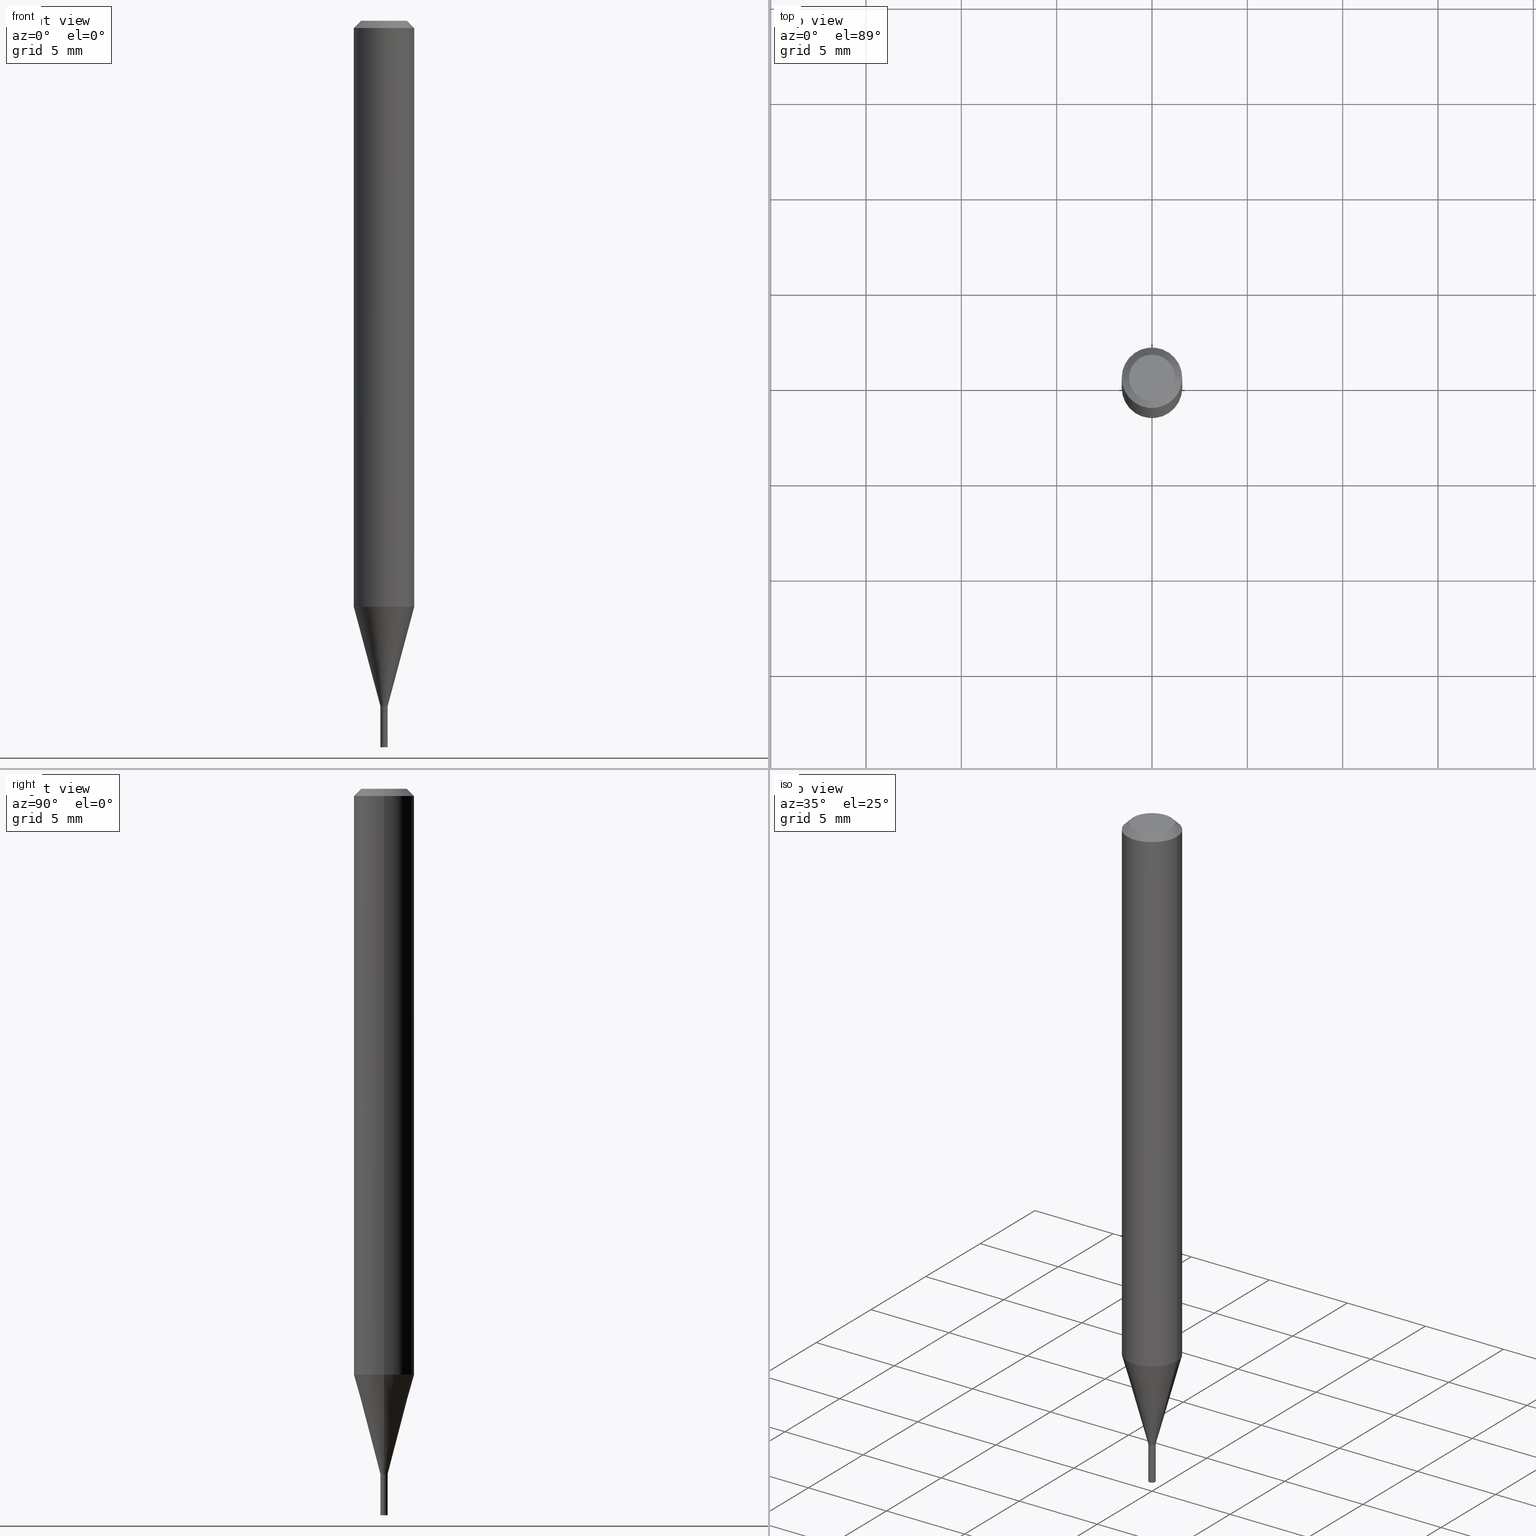
[diagram: canonical four-view strip — front | top / right | iso, engineering-drawing reading convention]
A machine part, canonical four-view strip (front | top / right | iso — engineering-drawing reading convention). The complete STEP part file that produces these views, byte-faithful:
ISO-10303-21;
HEADER;
FILE_DESCRIPTION (( 'STEP AP203' ),
    '1' );
FILE_NAME ('04183.STEP',
    '2024-03-14T17:13:35',
    ( '' ),
    ( '' ),
    'SwSTEP 2.0',
    'SolidWorks 2023',
    '' );
FILE_SCHEMA (( 'CONFIG_CONTROL_DESIGN' ));
ENDSEC;

DATA;
#1 = APPROVAL_STATUS ( 'not_yet_approved' ) ;
#2 = CIRCLE ( 'NONE', #393, 0.006999999999999999278 ) ;
#3 = DIRECTION ( 'NONE',  ( 0.7071067811865648922, -7.319954787623314421E-15, -0.7071067811865301422 ) ) ;
#4 = ADVANCED_FACE ( 'NONE', ( #452 ), #25, .T. ) ;
#5 = COORDINATED_UNIVERSAL_TIME_OFFSET ( 5, 0, .BEHIND. ) ;
#6 = DIRECTION ( 'NONE',  ( -2.445468806185136597E-29, 3.491481338843145583E-15, 1.000000000000000000 ) ) ;
#7 = VERTEX_POINT ( 'NONE', #384 ) ;
#8 = APPROVAL_ROLE ( '' ) ;
#9 = CARTESIAN_POINT ( 'NONE',  ( -0.007499999999999922527, -4.920324462000056082E-15, -1.424500000000000322 ) ) ;
#10 = ORIENTED_EDGE ( 'NONE', *, *, #118, .F. ) ;
#11 = CARTESIAN_POINT ( 'NONE',  ( 2.958374599936542913E-29, -4.223774878199784221E-15, -1.209737205583711894 ) ) ;
#12 = AXIS2_PLACEMENT_3D ( 'NONE', #63, #201, #18 ) ;
#13 = ORIENTED_EDGE ( 'NONE', *, *, #444, .F. ) ;
#14 = LINE ( 'NONE', #442, #451 ) ;
#15 = ORIENTED_EDGE ( 'NONE', *, *, #327, .T. ) ;
#16 = DIRECTION ( 'NONE',  ( 1.000000000000000000, -6.982962677686267499E-15, 4.852736867747366768E-29 ) ) ;
#17 = EDGE_CURVE ( 'NONE', #257, #260, #401, .T. ) ;
#18 = DIRECTION ( 'NONE',  ( 1.000000000000000000, -6.982962677686270655E-15, 0.000000000000000000 ) ) ;
#19 = AXIS2_PLACEMENT_3D ( 'NONE', #11, #284, #465 ) ;
#20 = ORIENTED_EDGE ( 'NONE', *, *, #89, .F. ) ;
#21 = DIRECTION ( 'NONE',  ( 1.000000000000000000, -6.982962677686268288E-15, 0.000000000000000000 ) ) ;
#22 = DIRECTION ( 'NONE',  ( -2.445468806185136597E-29, 3.491481338843145583E-15, 1.000000000000000000 ) ) ;
#23 =( NAMED_UNIT ( * ) SI_UNIT ( $, .STERADIAN. ) SOLID_ANGLE_UNIT ( ) );
#24 = VERTEX_POINT ( 'NONE', #462 ) ;
#25 = CONICAL_SURFACE ( 'NONE', #335, 0.006999999999999999278, 0.7853981633974718157 ) ;
#26 = ORIENTED_EDGE ( 'NONE', *, *, #389, .T. ) ;
#27 = AXIS2_PLACEMENT_3D ( 'NONE', #400, #56, #406 ) ;
#28 = LOCAL_TIME ( 13, 13, 35.00000000000000000, #5 ) ;
#29 = CALENDAR_DATE ( 2024, 14, 3 ) ;
#30 = CARTESIAN_POINT ( 'NONE',  ( -0.007499999999999920793, 5.329070518200695114E-17, -3.689201317691140293E-31 ) ) ;
#31 = ORIENTED_EDGE ( 'NONE', *, *, #307, .F. ) ;
#32 = EDGE_CURVE ( 'NONE', #110, #154, #38, .T. ) ;
#33 = DIRECTION ( 'NONE',  ( -2.445468806185136597E-29, 3.491481338843145583E-15, 1.000000000000000000 ) ) ;
#34 = FACE_OUTER_BOUND ( 'NONE', #75, .T. ) ;
#35 = AXIS2_PLACEMENT_3D ( 'NONE', #455, #146, #423 ) ;
#36 = AXIS2_PLACEMENT_3D ( 'NONE', #440, #299, #448 ) ;
#37 = APPROVAL_DATE_TIME ( #411, #276 ) ;
#38 = LINE ( 'NONE', #30, #417 ) ;
#39 = DATE_AND_TIME ( #350, #28 ) ;
#40 = CC_DESIGN_DATE_AND_TIME_ASSIGNMENT ( #380, #141, ( #255 ) ) ;
#41 = FACE_OUTER_BOUND ( 'NONE', #177, .T. ) ;
#42 = CARTESIAN_POINT ( 'NONE',  ( -0.06250000000000000000, -1.693984339291153034E-15, -0.01499999999999999944 ) ) ;
#43 = ORIENTED_EDGE ( 'NONE', *, *, #323, .F. ) ;
#44 = AXIS2_PLACEMENT_3D ( 'NONE', #416, #279, #104 ) ;
#45 = CONICAL_SURFACE ( 'NONE', #258, 0.007499999999999919925, 0.2617993877991498519 ) ;
#46 = CARTESIAN_POINT ( 'NONE',  ( -0.06250000000000001388, -3.779685668349720027E-15, -1.209737205583711894 ) ) ;
#47 = ADVANCED_FACE ( 'NONE', ( #176 ), #97, .T. ) ;
#48 = ORIENTED_EDGE ( 'NONE', *, *, #270, .T. ) ;
#49 = CYLINDRICAL_SURFACE ( 'NONE', #407, 0.007499999999999920793 ) ;
#50 = ORIENTED_EDGE ( 'NONE', *, *, #139, .T. ) ;
#51 = FACE_OUTER_BOUND ( 'NONE', #315, .T. ) ;
#52 = ORIENTED_EDGE ( 'NONE', *, *, #428, .T. ) ;
#53 = CARTESIAN_POINT ( 'NONE',  ( 3.576687321579069994E-29, -5.368277968210015545E-15, -1.500000000000000222 ) ) ;
#54 = VECTOR ( 'NONE', #64, 39.37007874015748143 ) ;
#55 = ORIENTED_EDGE ( 'NONE', *, *, #368, .T. ) ;
#56 = DIRECTION ( 'NONE',  ( -2.445468806185136597E-29, 3.491481338843145583E-15, 1.000000000000000000 ) ) ;
#57 = ADVANCED_FACE ( 'NONE', ( #241 ), #382, .F. ) ;
#58 = DIRECTION ( 'NONE',  ( 2.438088387897960049E-29, -3.491481338843145188E-15, -1.000000000000000000 ) ) ;
#59 = ORIENTED_EDGE ( 'NONE', *, *, #345, .F. ) ;
#60 = DIRECTION ( 'NONE',  ( 1.000000000000000000, -6.982962677686213068E-15, 0.000000000000000000 ) ) ;
#61 = VECTOR ( 'NONE', #147, 39.37007874015748143 ) ;
#62 = CIRCLE ( 'NONE', #363, 0.06250000000000000000 ) ;
#63 = CARTESIAN_POINT ( 'NONE',  ( 2.958374599936542913E-29, -4.223774878199784221E-15, -1.209737205583711894 ) ) ;
#64 = DIRECTION ( 'NONE',  ( -2.445468806185136877E-29, 3.491481338843145188E-15, 1.000000000000000000 ) ) ;
#65 = DIRECTION ( 'NONE',  ( -2.445468806185136877E-29, 3.491481338843145188E-15, 1.000000000000000000 ) ) ;
#66 = LOCAL_TIME ( 13, 13, 35.00000000000000000, #240 ) ;
#67 = DIRECTION ( 'NONE',  ( 1.000000000000000000, -6.982962677686265922E-15, 4.876176775795935793E-29 ) ) ;
#68 = ADVANCED_FACE ( 'NONE', ( #34 ), #347, .T. ) ;
#69 = CARTESIAN_POINT ( 'NONE',  ( -0.04749999999999999362, 3.578768372314198180E-16, -7.359664656873739018E-16 ) ) ;
#70 = ORIENTED_EDGE ( 'NONE', *, *, #307, .T. ) ;
#71 = EDGE_CURVE ( 'NONE', #441, #225, #156, .T. ) ;
#72 = AXIS2_PLACEMENT_3D ( 'NONE', #217, #123, #398 ) ;
#73 = VECTOR ( 'NONE', #403, 39.37007874015748854 ) ;
#74 = ADVANCED_FACE ( 'NONE', ( #41 ), #436, .T. ) ;
#75 = EDGE_LOOP ( 'NONE', ( #460, #391, #324, #373 ) ) ;
#76 = PERSON_AND_ORGANIZATION_ROLE ( 'design_supplier' ) ;
#77 = CARTESIAN_POINT ( 'NONE',  ( -0.006999999999999999278, -4.925622916348276907E-15, -1.425000000000000266 ) ) ;
#78 = ORIENTED_EDGE ( 'NONE', *, *, #208, .T. ) ;
#79 = DIRECTION ( 'NONE',  ( -2.445468806185136597E-29, 3.491481338843145583E-15, 1.000000000000000000 ) ) ;
#80 = CLOSED_SHELL ( 'NONE', ( #316, #405, #74, #339 ) ) ;
#81 = COORDINATED_UNIVERSAL_TIME_OFFSET ( 5, 0, .BEHIND. ) ;
#82 = AXIS2_PLACEMENT_3D ( 'NONE', #109, #385, #180 ) ;
#83 = CARTESIAN_POINT ( 'NONE',  ( 0.006999999999999999278, -5.024241646595287642E-15, -1.425000000000000266 ) ) ;
#84 = ORIENTED_EDGE ( 'NONE', *, *, #345, .T. ) ;
#85 = FACE_OUTER_BOUND ( 'NONE', #375, .T. ) ;
#86 = ORIENTED_EDGE ( 'NONE', *, *, #376, .F. ) ;
#87 = CARTESIAN_POINT ( 'NONE',  ( 0.007499999999999919925, -4.992818314545696633E-15, -1.415000000000000036 ) ) ;
#88 = ORIENTED_EDGE ( 'NONE', *, *, #32, .T. ) ;
#89 = EDGE_CURVE ( 'NONE', #7, #220, #371, .T. ) ;
#90 = CARTESIAN_POINT ( 'NONE',  ( -0.007499999999999999722, -5.053000752876092720E-15, -1.500000000000000222 ) ) ;
#91 =( GEOMETRIC_REPRESENTATION_CONTEXT ( 3 ) GLOBAL_UNCERTAINTY_ASSIGNED_CONTEXT ( ( #344 ) ) GLOBAL_UNIT_ASSIGNED_CONTEXT ( ( #209, #275, #23 ) ) REPRESENTATION_CONTEXT ( 'NONE', 'WORKASPACE' ) );
#92 = PLANE ( 'NONE',  #321 ) ;
#93 = CARTESIAN_POINT ( 'NONE',  ( 3.460338360751968441E-29, -4.940446094463050737E-15, -1.415000000000000036 ) ) ;
#94 = ADVANCED_FACE ( 'NONE', ( #51 ), #358, .T. ) ;
#95 = VERTEX_POINT ( 'NONE', #252 ) ;
#96 = DIRECTION ( 'NONE',  ( 1.000000000000000000, -6.982962677686213068E-15, 0.000000000000000000 ) ) ;
#97 = CONICAL_SURFACE ( 'NONE', #44, 0.06250000000000000000, 0.7853981633974729260 ) ;
#98 = CIRCLE ( 'NONE', #288, 0.007499999999999919925 ) ;
#99 = EDGE_LOOP ( 'NONE', ( #268, #160, #212, #192 ) ) ;
#100 = CARTESIAN_POINT ( 'NONE',  ( -0.06250000000000000000, 3.840629472727444916E-16, -0.01499999999999999944 ) ) ;
#101 = DIRECTION ( 'NONE',  ( -2.445468806185136597E-29, 3.491481338843145583E-15, 1.000000000000000000 ) ) ;
#102 = ADVANCED_FACE ( 'NONE', ( #114 ), #256, .T. ) ;
#103 =( LENGTH_UNIT ( ) NAMED_UNIT ( * ) SI_UNIT ( $, .METRE. ) );
#104 = DIRECTION ( 'NONE',  ( -1.000000000000000000, 6.982962677686266711E-15, 0.000000000000000000 ) ) ;
#105 = AXIS2_PLACEMENT_3D ( 'NONE', #259, #151, #119 ) ;
#106 = CIRCLE ( 'NONE', #179, 0.007499999999999919925 ) ;
#107 = CALENDAR_DATE ( 2024, 14, 3 ) ;
#108 = ORIENTED_EDGE ( 'NONE', *, *, #420, .T. ) ;
#109 = CARTESIAN_POINT ( 'NONE',  ( 0.000000000000000000, 0.000000000000000000, 0.000000000000000000 ) ) ;
#110 = VERTEX_POINT ( 'NONE', #9 ) ;
#111 = APPROVAL_DATE_TIME ( #251, #244 ) ;
#112 = ORIENTED_EDGE ( 'NONE', *, *, #327, .F. ) ;
#113 = VECTOR ( 'NONE', #461, 39.37007874015748143 ) ;
#114 = FACE_OUTER_BOUND ( 'NONE', #378, .T. ) ;
#115 = CARTESIAN_POINT ( 'NONE',  ( 1.799783034236790585E-44, -2.569613180961801607E-30, -7.359664656873714366E-16 ) ) ;
#116 = ORIENTED_EDGE ( 'NONE', *, *, #323, .T. ) ;
#117 = DATE_TIME_ROLE ( 'classification_date' ) ;
#118 = EDGE_CURVE ( 'NONE', #342, #110, #250, .T. ) ;
#119 = DIRECTION ( 'NONE',  ( 1.000000000000000000, -6.982962677686267499E-15, 4.876176775795936353E-29 ) ) ;
#120 = ADVANCED_BREP_SHAPE_REPRESENTATION ( '04183', ( #273, #437, #82 ), #91 ) ;
#121 = ORIENTED_EDGE ( 'NONE', *, *, #428, .F. ) ;
#122 = AXIS2_PLACEMENT_3D ( 'NONE', #161, #445, #322 ) ;
#123 = DIRECTION ( 'NONE',  ( -2.445468806185136597E-29, 3.491481338843145583E-15, 1.000000000000000000 ) ) ;
#124 = ORIENTED_EDGE ( 'NONE', *, *, #71, .T. ) ;
#125 = CARTESIAN_POINT ( 'NONE',  ( 3.483570314410727746E-29, -4.973615167182062460E-15, -1.424500000000000322 ) ) ;
#126 = ADVANCED_FACE ( 'NONE', ( #85 ), #49, .T. ) ;
#127 = DIRECTION ( 'NONE',  ( 1.000000000000000000, -6.982962677686213068E-15, 0.000000000000000000 ) ) ;
#128 = ORIENTED_EDGE ( 'NONE', *, *, #265, .T. ) ;
#129 = FACE_OUTER_BOUND ( 'NONE', #343, .T. ) ;
#130 = PRODUCT_DEFINITION_FORMATION_WITH_SPECIFIED_SOURCE ( 'ANY', '', #233, .NOT_KNOWN. ) ;
#131 = APPROVAL ( #1, 'UNSPECIFIED' ) ;
#132 = CARTESIAN_POINT ( 'NONE',  ( -0.006999999999999999278, -4.922973689174165706E-15, -1.425000000000000266 ) ) ;
#133 = CARTESIAN_POINT ( 'NONE',  ( 1.799783034236790585E-44, -2.569613180961801607E-30, -7.359664656873714366E-16 ) ) ;
#134 = CARTESIAN_POINT ( 'NONE',  ( 5.237222008268184456E-17, 0.007499999999995025403, -1.425000000000000266 ) ) ;
#135 = AXIS2_PLACEMENT_3D ( 'NONE', #254, #191, #319 ) ;
#136 = VECTOR ( 'NONE', #3, 39.37007874015748143 ) ;
#137 = APPROVAL_STATUS ( 'not_yet_approved' ) ;
#138 = VERTEX_POINT ( 'NONE', #83 ) ;
#139 = EDGE_CURVE ( 'NONE', #154, #220, #224, .T. ) ;
#140 = CARTESIAN_POINT ( 'NONE',  ( 0.007499999999999920793, -5.237222008264645059E-17, 3.657132581846913221E-31 ) ) ;
#141 = DATE_TIME_ROLE ( 'creation_date' ) ;
#142 = DIRECTION ( 'NONE',  ( -1.000000000000000000, 6.982962677686265922E-15, -4.876176775795935793E-29 ) ) ;
#143 = AXIS2_PLACEMENT_3D ( 'NONE', #348, #101, #308 ) ;
#144 = CIRCLE ( 'NONE', #443, 0.007499999999999922527 ) ;
#145 = EDGE_LOOP ( 'NONE', ( #202, #50, #20, #112 ) ) ;
#146 = DIRECTION ( 'NONE',  ( 2.445468806185136597E-29, -3.491481338843145583E-15, -1.000000000000000000 ) ) ;
#147 = DIRECTION ( 'NONE',  ( -0.7071067811865642261, 7.493145998870414114E-15, 0.7071067811865309194 ) ) ;
#148 = PERSON_AND_ORGANIZATION_ROLE ( 'classification_officer' ) ;
#149 = CARTESIAN_POINT ( 'NONE',  ( -0.007499999999999919925, -4.887155389281043570E-15, -1.415000000000000036 ) ) ;
#150 = ADVANCED_FACE ( 'NONE', ( #353 ), #360, .F. ) ;
#151 = DIRECTION ( 'NONE',  ( -2.445468806185136597E-29, 3.491481338843145583E-15, 1.000000000000000000 ) ) ;
#152 = SECURITY_CLASSIFICATION_LEVEL ( 'unclassified' ) ;
#153 = DIRECTION ( 'NONE',  ( 1.000000000000000000, -6.982962677686267499E-15, 4.876176775795935793E-29 ) ) ;
#154 = VERTEX_POINT ( 'NONE', #392 ) ;
#155 = VECTOR ( 'NONE', #289, 39.37007874015748854 ) ;
#156 = CIRCLE ( 'NONE', #320, 0.04749999999999999362 ) ;
#157 = DIRECTION ( 'NONE',  ( -2.445468806185136597E-29, 3.491481338843145583E-15, 1.000000000000000000 ) ) ;
#158 = CC_DESIGN_APPROVAL ( #244, ( #130 ) ) ;
#159 = ADVANCED_FACE ( 'NONE', ( #439 ), #430, .T. ) ;
#160 = ORIENTED_EDGE ( 'NONE', *, *, #173, .T. ) ;
#161 = CARTESIAN_POINT ( 'NONE',  ( 0.000000000000000000, 0.000000000000000000, 0.000000000000000000 ) ) ;
#162 = VERTEX_POINT ( 'NONE', #286 ) ;
#163 = CARTESIAN_POINT ( 'NONE',  ( 0.007499999999999999722, -5.289594228347365650E-15, -1.500000000000000222 ) ) ;
#164 = CYLINDRICAL_SURFACE ( 'NONE', #410, 0.06250000000000000000 ) ;
#165 = VECTOR ( 'NONE', #325, 39.37007874015748143 ) ;
#166 = ORIENTED_EDGE ( 'NONE', *, *, #118, .T. ) ;
#167 = CC_DESIGN_PERSON_AND_ORGANIZATION_ASSIGNMENT ( #429, #76, ( #130 ) ) ;
#168 = LINE ( 'NONE', #369, #213 ) ;
#169 = CARTESIAN_POINT ( 'NONE',  ( 3.484793048813820547E-29, -4.975360907851483175E-15, -1.425000000000000266 ) ) ;
#170 = DIRECTION ( 'NONE',  ( -2.438088387897960049E-29, 3.491481338843145188E-15, 1.000000000000000000 ) ) ;
#171 = VERTEX_POINT ( 'NONE', #42 ) ;
#172 = VECTOR ( 'NONE', #306, 39.37007874015748143 ) ;
#173 = EDGE_CURVE ( 'NONE', #110, #24, #144, .T. ) ;
#174 = CC_DESIGN_SECURITY_CLASSIFICATION ( #381, ( #130 ) ) ;
#175 = PERSON_AND_ORGANIZATION_ROLE ( 'creator' ) ;
#176 = FACE_OUTER_BOUND ( 'NONE', #203, .T. ) ;
#177 = EDGE_LOOP ( 'NONE', ( #31, #26, #84, #334 ) ) ;
#178 = CARTESIAN_POINT ( 'NONE',  ( 3.668203209277705088E-31, -5.237222008264718399E-17, -0.01499999999999999944 ) ) ;
#179 = AXIS2_PLACEMENT_3D ( 'NONE', #93, #234, #60 ) ;
#180 = DIRECTION ( 'NONE',  ( 1.000000000000000000, 0.000000000000000000, 0.000000000000000000 ) ) ;
#181 = CARTESIAN_POINT ( 'NONE',  ( 3.316907271900976096E-16, 0.04749999999999999362, -5.338285964387351640E-16 ) ) ;
#182 = DIRECTION ( 'NONE',  ( 1.000000000000000000, -6.982962677686210701E-15, 0.000000000000000000 ) ) ;
#183 = DIRECTION ( 'NONE',  ( 1.000000000000000000, -6.982962677686268288E-15, 0.000000000000000000 ) ) ;
#184 = EDGE_CURVE ( 'NONE', #318, #218, #228, .T. ) ;
#185 = AXIS2_PLACEMENT_3D ( 'NONE', #311, #280, #183 ) ;
#186 = FACE_OUTER_BOUND ( 'NONE', #145, .T. ) ;
#187 = PERSON_AND_ORGANIZATION ( #329, #237 ) ;
#188 = CARTESIAN_POINT ( 'NONE',  ( 0.000000000000000000, 0.000000000000000000, 0.000000000000000000 ) ) ;
#189 = ORIENTED_EDGE ( 'NONE', *, *, #466, .F. ) ;
#190 = CC_DESIGN_PERSON_AND_ORGANIZATION_ASSIGNMENT ( #435, #148, ( #381 ) ) ;
#191 = DIRECTION ( 'NONE',  ( -2.438088387897960049E-29, 3.491481338843145188E-15, 1.000000000000000000 ) ) ;
#192 = ORIENTED_EDGE ( 'NONE', *, *, #368, .F. ) ;
#193 = FACE_OUTER_BOUND ( 'NONE', #397, .T. ) ;
#194 = ORIENTED_EDGE ( 'NONE', *, *, #412, .F. ) ;
#195 = FACE_OUTER_BOUND ( 'NONE', #263, .T. ) ;
#196 = DIRECTION ( 'NONE',  ( 1.000000000000000000, -6.982962677686333764E-15, 0.000000000000000000 ) ) ;
#197 = CC_DESIGN_PERSON_AND_ORGANIZATION_ASSIGNMENT ( #374, #175, ( #255 ) ) ;
#198 = CARTESIAN_POINT ( 'NONE',  ( 3.668203209277704895E-29, -5.237222008264718177E-15, -1.500000000000000222 ) ) ;
#199 = AXIS2_PLACEMENT_3D ( 'NONE', #390, #317, #214 ) ;
#200 = LOCAL_TIME ( 13, 13, 35.00000000000000000, #278 ) ;
#201 = DIRECTION ( 'NONE',  ( -2.445468806185136597E-29, 3.491481338843145583E-15, 1.000000000000000000 ) ) ;
#202 = ORIENTED_EDGE ( 'NONE', *, *, #376, .T. ) ;
#203 = EDGE_LOOP ( 'NONE', ( #359, #78, #108, #189 ) ) ;
#204 = APPLICATION_PROTOCOL_DEFINITION ( 'international standard', 'config_control_design', 1994, #366 ) ;
#205 = DIRECTION ( 'NONE',  ( -2.445468806185136597E-29, 3.491481338843145583E-15, 1.000000000000000000 ) ) ;
#206 = CIRCLE ( 'NONE', #301, 0.06250000000000000000 ) ;
#207 = CARTESIAN_POINT ( 'NONE',  ( 0.06250000000000000000, -4.364351673553916694E-16, 3.047610484872459871E-30 ) ) ;
#208 = EDGE_CURVE ( 'NONE', #225, #162, #388, .T. ) ;
#209 =( CONVERSION_BASED_UNIT ( 'INCH', #302 ) LENGTH_UNIT ( ) NAMED_UNIT ( #427 ) );
#210 = DIRECTION ( 'NONE',  ( 2.438088387897960049E-29, -3.491481338843145188E-15, -1.000000000000000000 ) ) ;
#211 = LINE ( 'NONE', #309, #113 ) ;
#212 = ORIENTED_EDGE ( 'NONE', *, *, #444, .T. ) ;
#213 = VECTOR ( 'NONE', #267, 39.37007874015748143 ) ;
#214 = DIRECTION ( 'NONE',  ( 1.000000000000000000, -6.982962677686267499E-15, 4.876176775795935793E-29 ) ) ;
#215 = CALENDAR_DATE ( 2024, 14, 3 ) ;
#216 = EDGE_CURVE ( 'NONE', #218, #318, #387, .T. ) ;
#217 = CARTESIAN_POINT ( 'NONE',  ( 3.460338360751968441E-29, -4.940446094463050737E-15, -1.415000000000000036 ) ) ;
#218 = VERTEX_POINT ( 'NONE', #355 ) ;
#219 = DIRECTION ( 'NONE',  ( 1.000000000000000000, -6.982962677686268288E-15, 0.000000000000000000 ) ) ;
#220 = VERTEX_POINT ( 'NONE', #46 ) ;
#221 = DIRECTION ( 'NONE',  ( 1.000000000000000000, -6.982962677686267499E-15, 4.852736867747366768E-29 ) ) ;
#222 = ADVANCED_FACE ( 'NONE', ( #186 ), #45, .T. ) ;
#223 = ORIENTED_EDGE ( 'NONE', *, *, #265, .F. ) ;
#224 = LINE ( 'NONE', #149, #155 ) ;
#225 = VERTEX_POINT ( 'NONE', #266 ) ;
#226 = CYLINDRICAL_SURFACE ( 'NONE', #122, 0.007499999999999999722 ) ;
#227 = ORIENTED_EDGE ( 'NONE', *, *, #216, .T. ) ;
#228 = CIRCLE ( 'NONE', #185, 0.007499999999999999722 ) ;
#229 = CARTESIAN_POINT ( 'NONE',  ( 3.484793048813820547E-29, -4.975360907851483175E-15, -1.425000000000000266 ) ) ;
#230 = ORIENTED_EDGE ( 'NONE', *, *, #184, .T. ) ;
#231 = CARTESIAN_POINT ( 'NONE',  ( 0.000000000000000000, 0.000000000000000000, 0.000000000000000000 ) ) ;
#232 = ADVANCED_FACE ( 'NONE', ( #129 ), #164, .T. ) ;
#233 = PRODUCT ( '04183', '04183', '', ( #415 ) ) ;
#234 = DIRECTION ( 'NONE',  ( -2.445468806185136597E-29, 3.491481338843145583E-15, 1.000000000000000000 ) ) ;
#235 = ORIENTED_EDGE ( 'NONE', *, *, #184, .F. ) ;
#236 = DIRECTION ( 'NONE',  ( -2.445468806185136597E-29, 3.491481338843145583E-15, 1.000000000000000000 ) ) ;
#237 = ORGANIZATION ( 'UNSPECIFIED', 'UNSPECIFIED', '' ) ;
#238 = DIRECTION ( 'NONE',  ( 1.000000000000000000, -6.982962677686266711E-15, 0.000000000000000000 ) ) ;
#239 = ORIENTED_EDGE ( 'NONE', *, *, #173, .F. ) ;
#240 = COORDINATED_UNIVERSAL_TIME_OFFSET ( 5, 0, .BEHIND. ) ;
#241 = FACE_OUTER_BOUND ( 'NONE', #414, .T. ) ;
#242 = LOCAL_TIME ( 13, 13, 35.00000000000000000, #81 ) ;
#243 = DIRECTION ( 'NONE',  ( 1.000000000000000000, -6.982962677686266711E-15, 0.000000000000000000 ) ) ;
#244 = APPROVAL ( #424, 'UNSPECIFIED' ) ;
#245 = APPLICATION_PROTOCOL_DEFINITION ( 'international standard', 'config_control_design', 1994, #340 ) ;
#246 = APPROVAL_DATE_TIME ( #39, #131 ) ;
#247 = CIRCLE ( 'NONE', #336, 0.007499999999999999722 ) ;
#248 = EDGE_CURVE ( 'NONE', #225, #441, #418, .T. ) ;
#249 = CALENDAR_DATE ( 2024, 14, 3 ) ;
#250 = LINE ( 'NONE', #77, #61 ) ;
#251 = DATE_AND_TIME ( #215, #242 ) ;
#252 = CARTESIAN_POINT ( 'NONE',  ( 0.007499999999999919925, -4.992818314545696633E-15, -1.415000000000000036 ) ) ;
#253 = ORIENTED_EDGE ( 'NONE', *, *, #292, .T. ) ;
#254 = CARTESIAN_POINT ( 'NONE',  ( 3.484793048813820547E-29, -4.975360907851483175E-15, -1.425000000000000266 ) ) ;
#255 = PRODUCT_DEFINITION ( 'UNKNOWN', '', #130, #408 ) ;
#256 = CONICAL_SURFACE ( 'NONE', #72, 0.007499999999999919925, 0.2617993877991498519 ) ;
#257 = VERTEX_POINT ( 'NONE', #163 ) ;
#258 = AXIS2_PLACEMENT_3D ( 'NONE', #314, #6, #96 ) ;
#259 = CARTESIAN_POINT ( 'NONE',  ( 0.000000000000000000, 0.000000000000000000, 0.000000000000000000 ) ) ;
#260 = VERTEX_POINT ( 'NONE', #90 ) ;
#261 = DIRECTION ( 'NONE',  ( -2.445468806185136597E-29, 3.491481338843145583E-15, 1.000000000000000000 ) ) ;
#262 = PLANE ( 'NONE',  #349 ) ;
#263 = EDGE_LOOP ( 'NONE', ( #48, #166, #394, #121 ) ) ;
#264 = CC_DESIGN_APPROVAL ( #276, ( #255 ) ) ;
#265 = EDGE_CURVE ( 'NONE', #220, #171, #14, .T. ) ;
#266 = CARTESIAN_POINT ( 'NONE',  ( 0.04749999999999999362, -4.035134999187590949E-16, -7.359664656873688728E-16 ) ) ;
#267 = DIRECTION ( 'NONE',  ( -2.445468806185136877E-29, 3.491481338843145188E-15, 1.000000000000000000 ) ) ;
#268 = ORIENTED_EDGE ( 'NONE', *, *, #32, .F. ) ;
#269 = DIRECTION ( 'NONE',  ( -2.445468806185136877E-29, 3.491481338843145188E-15, 1.000000000000000000 ) ) ;
#270 = EDGE_CURVE ( 'NONE', #138, #342, #2, .T. ) ;
#271 = AXIS2_PLACEMENT_3D ( 'NONE', #282, #79, #219 ) ;
#272 = FACE_OUTER_BOUND ( 'NONE', #364, .T. ) ;
#273 = MANIFOLD_SOLID_BREP ( 'Body-Move/Copy2[1]', #80 ) ;
#274 = COORDINATED_UNIVERSAL_TIME_OFFSET ( 5, 0, .BEHIND. ) ;
#275 =( NAMED_UNIT ( * ) PLANE_ANGLE_UNIT ( ) SI_UNIT ( $, .RADIAN. ) );
#276 = APPROVAL ( #137, 'UNSPECIFIED' ) ;
#277 = ORIENTED_EDGE ( 'NONE', *, *, #420, .F. ) ;
#278 = COORDINATED_UNIVERSAL_TIME_OFFSET ( 5, 0, .BEHIND. ) ;
#279 = DIRECTION ( 'NONE',  ( 2.445468806185136597E-29, -3.491481338843145583E-15, -1.000000000000000000 ) ) ;
#280 = DIRECTION ( 'NONE',  ( -2.445468806185136597E-29, 3.491481338843145583E-15, 1.000000000000000000 ) ) ;
#281 = VECTOR ( 'NONE', #383, 39.37007874015748143 ) ;
#282 = CARTESIAN_POINT ( 'NONE',  ( 3.484793048813820547E-29, -4.975360907851483175E-15, -1.425000000000000266 ) ) ;
#283 = CC_DESIGN_DATE_AND_TIME_ASSIGNMENT ( #464, #117, ( #381 ) ) ;
#284 = DIRECTION ( 'NONE',  ( -2.445468806185136597E-29, 3.491481338843145583E-15, 1.000000000000000000 ) ) ;
#285 = PERSON_AND_ORGANIZATION_ROLE ( 'creator' ) ;
#286 = CARTESIAN_POINT ( 'NONE',  ( 0.06250000000000000000, -4.888073874380388472E-16, -0.01499999999999999944 ) ) ;
#287 = EDGE_LOOP ( 'NONE', ( #10, #399, #52, #239 ) ) ;
#288 = AXIS2_PLACEMENT_3D ( 'NONE', #332, #362, #127 ) ;
#289 = DIRECTION ( 'NONE',  ( -0.2588190451025211281, 5.211531920934547886E-15, 0.9659258262890679791 ) ) ;
#290 = EDGE_LOOP ( 'NONE', ( #431, #447 ) ) ;
#291 = FACE_OUTER_BOUND ( 'NONE', #434, .T. ) ;
#292 = EDGE_CURVE ( 'NONE', #24, #110, #295, .T. ) ;
#293 = ORIENTED_EDGE ( 'NONE', *, *, #17, .F. ) ;
#294 = LINE ( 'NONE', #87, #73 ) ;
#295 = CIRCLE ( 'NONE', #27, 0.007499999999999922527 ) ;
#296 = ADVANCED_FACE ( 'NONE', ( #195 ), #310, .T. ) ;
#297 = DIRECTION ( 'NONE',  ( 1.000000000000000000, -6.982962677686266711E-15, 4.876176775795935793E-29 ) ) ;
#298 = CC_DESIGN_PERSON_AND_ORGANIZATION_ASSIGNMENT ( #422, #285, ( #130 ) ) ;
#299 = DIRECTION ( 'NONE',  ( -2.445468806185136597E-29, 3.491481338843145583E-15, 1.000000000000000000 ) ) ;
#300 = CARTESIAN_POINT ( 'NONE',  ( -0.007499999999999999722, 5.329070518200751197E-17, -3.689201317691179266E-31 ) ) ;
#301 = AXIS2_PLACEMENT_3D ( 'NONE', #178, #33, #243 ) ;
#302 = LENGTH_MEASURE_WITH_UNIT ( LENGTH_MEASURE( 0.02539999999999999897 ), #103 );
#303 = CC_DESIGN_APPROVAL ( #131, ( #381 ) ) ;
#304 = ORIENTED_EDGE ( 'NONE', *, *, #139, .F. ) ;
#305 = ORIENTED_EDGE ( 'NONE', *, *, #389, .F. ) ;
#306 = DIRECTION ( 'NONE',  ( -0.7071067811865648922, 2.468850131082438893E-15, -0.7071067811865301422 ) ) ;
#307 = EDGE_CURVE ( 'NONE', #260, #218, #404, .T. ) ;
#308 = DIRECTION ( 'NONE',  ( 1.000000000000000000, -6.982962677686268288E-15, 0.000000000000000000 ) ) ;
#309 = CARTESIAN_POINT ( 'NONE',  ( 0.006999999999999999278, -5.024241646595287642E-15, -1.425000000000000266 ) ) ;
#310 = CONICAL_SURFACE ( 'NONE', #328, 0.006999999999999999278, 0.7853981633974718157 ) ;
#311 = CARTESIAN_POINT ( 'NONE',  ( 3.484793048813820547E-29, -4.975360907851483175E-15, -1.425000000000000266 ) ) ;
#312 = CARTESIAN_POINT ( 'NONE',  ( 0.06250000000000000000, -4.811533449433679005E-16, -0.01499999999999999944 ) ) ;
#313 = LOCAL_TIME ( 13, 13, 35.00000000000000000, #274 ) ;
#314 = CARTESIAN_POINT ( 'NONE',  ( 3.460338360751968441E-29, -4.940446094463050737E-15, -1.415000000000000036 ) ) ;
#315 = EDGE_LOOP ( 'NONE', ( #421, #128, #277, #194 ) ) ;
#316 = ADVANCED_FACE ( 'NONE', ( #193 ), #226, .T. ) ;
#317 = DIRECTION ( 'NONE',  ( -2.445468806185136597E-29, 3.491481338843145583E-15, 1.000000000000000000 ) ) ;
#318 = VERTEX_POINT ( 'NONE', #372 ) ;
#319 = DIRECTION ( 'NONE',  ( 1.000000000000000000, -6.982962677686265922E-15, 4.876176775795935793E-29 ) ) ;
#320 = AXIS2_PLACEMENT_3D ( 'NONE', #115, #426, #221 ) ;
#321 = AXIS2_PLACEMENT_3D ( 'NONE', #134, #58, #326 ) ;
#322 = DIRECTION ( 'NONE',  ( 1.000000000000000000, -6.982962677686267499E-15, 4.876176775795936353E-29 ) ) ;
#323 = EDGE_CURVE ( 'NONE', #220, #7, #425, .T. ) ;
#324 = ORIENTED_EDGE ( 'NONE', *, *, #466, .T. ) ;
#325 = DIRECTION ( 'NONE',  ( -2.445468806185136877E-29, 3.491481338843145188E-15, 1.000000000000000000 ) ) ;
#326 = DIRECTION ( 'NONE',  ( -1.000000000000000000, 6.982962677686265922E-15, -4.876176775795935793E-29 ) ) ;
#327 = EDGE_CURVE ( 'NONE', #95, #7, #294, .T. ) ;
#328 = AXIS2_PLACEMENT_3D ( 'NONE', #169, #236, #196 ) ;
#329 = PERSON ( 'UNSPECIFIED', 'UNSPECIFIED', 'UNSPECIFIED', ('UNSPECIFIED'), ('UNSPECIFIED'), ('UNSPECIFIED') ) ;
#330 = DIRECTION ( 'NONE',  ( -2.445468806185136597E-29, 3.491481338843145583E-15, 1.000000000000000000 ) ) ;
#331 = PRODUCT_DEFINITION_SHAPE ( 'NONE', 'NONE',  #255 ) ;
#332 = CARTESIAN_POINT ( 'NONE',  ( 3.460338360751968441E-29, -4.940446094463050737E-15, -1.415000000000000036 ) ) ;
#333 = DIRECTION ( 'NONE',  ( -2.445468806185136597E-29, 3.491481338843145583E-15, 1.000000000000000000 ) ) ;
#334 = ORIENTED_EDGE ( 'NONE', *, *, #216, .F. ) ;
#335 = AXIS2_PLACEMENT_3D ( 'NONE', #453, #205, #338 ) ;
#336 = AXIS2_PLACEMENT_3D ( 'NONE', #198, #330, #21 ) ;
#337 = CARTESIAN_POINT ( 'NONE',  ( 3.668203209277705088E-31, -5.237222008264718399E-17, -0.01499999999999999944 ) ) ;
#338 = DIRECTION ( 'NONE',  ( 1.000000000000000000, -6.982962677686333764E-15, 0.000000000000000000 ) ) ;
#339 = ADVANCED_FACE ( 'NONE', ( #291 ), #92, .F. ) ;
#340 = APPLICATION_CONTEXT ( 'configuration controlled 3d designs of mechanical parts and assemblies' ) ;
#341 = PERSON_AND_ORGANIZATION ( #329, #237 ) ;
#342 = VERTEX_POINT ( 'NONE', #132 ) ;
#343 = EDGE_LOOP ( 'NONE', ( #223, #116, #361, #357 ) ) ;
#344 = UNCERTAINTY_MEASURE_WITH_UNIT (LENGTH_MEASURE( 1.000000000000000082E-05 ), #209, 'distance_accuracy_value', 'NONE');
#345 = EDGE_CURVE ( 'NONE', #257, #318, #168, .T. ) ;
#346 = PERSON_AND_ORGANIZATION ( #329, #237 ) ;
#347 = CONICAL_SURFACE ( 'NONE', #35, 0.06250000000000000000, 0.7853981633974729260 ) ;
#348 = CARTESIAN_POINT ( 'NONE',  ( 3.668203209277704895E-29, -5.237222008264718177E-15, -1.500000000000000222 ) ) ;
#349 = AXIS2_PLACEMENT_3D ( 'NONE', #53, #170, #67 ) ;
#350 = CALENDAR_DATE ( 2024, 14, 3 ) ;
#351 = DIRECTION ( 'NONE',  ( -2.445468806185136597E-29, 3.491481338843145583E-15, 1.000000000000000000 ) ) ;
#352 = APPROVAL_ROLE ( '' ) ;
#353 = FACE_OUTER_BOUND ( 'NONE', #290, .T. ) ;
#354 = ORIENTED_EDGE ( 'NONE', *, *, #17, .T. ) ;
#355 = CARTESIAN_POINT ( 'NONE',  ( -0.007499999999999999722, -5.053000752876092720E-15, -1.425000000000000266 ) ) ;
#356 = CC_DESIGN_PERSON_AND_ORGANIZATION_ASSIGNMENT ( #341, #419, ( #233 ) ) ;
#357 = ORIENTED_EDGE ( 'NONE', *, *, #463, .F. ) ;
#358 = CYLINDRICAL_SURFACE ( 'NONE', #456, 0.06250000000000000000 ) ;
#359 = ORIENTED_EDGE ( 'NONE', *, *, #248, .F. ) ;
#360 = PLANE ( 'NONE',  #135 ) ;
#361 = ORIENTED_EDGE ( 'NONE', *, *, #412, .T. ) ;
#362 = DIRECTION ( 'NONE',  ( -2.445468806185136597E-29, 3.491481338843145583E-15, 1.000000000000000000 ) ) ;
#363 = AXIS2_PLACEMENT_3D ( 'NONE', #337, #333, #238 ) ;
#364 = EDGE_LOOP ( 'NONE', ( #293, #305 ) ) ;
#365 = DIRECTION ( 'NONE',  ( -2.445468806185136597E-29, 3.491481338843145583E-15, 1.000000000000000000 ) ) ;
#366 = APPLICATION_CONTEXT ( 'configuration controlled 3d designs of mechanical parts and assemblies' ) ;
#367 = DIRECTION ( 'NONE',  ( 1.000000000000000000, -6.982962677686333764E-15, 0.000000000000000000 ) ) ;
#368 = EDGE_CURVE ( 'NONE', #154, #95, #106, .T. ) ;
#369 = CARTESIAN_POINT ( 'NONE',  ( 0.007499999999999999722, -5.237222008264700526E-17, 3.657132581846952195E-31 ) ) ;
#370 = ORIENTED_EDGE ( 'NONE', *, *, #248, .T. ) ;
#371 = CIRCLE ( 'NONE', #19, 0.06250000000000000000 ) ;
#372 = CARTESIAN_POINT ( 'NONE',  ( 0.007499999999999999722, -5.027733127934130649E-15, -1.425000000000000266 ) ) ;
#373 = ORIENTED_EDGE ( 'NONE', *, *, #463, .T. ) ;
#374 = PERSON_AND_ORGANIZATION ( #329, #237 ) ;
#375 = EDGE_LOOP ( 'NONE', ( #253, #88, #86, #13 ) ) ;
#376 = EDGE_CURVE ( 'NONE', #95, #154, #98, .T. ) ;
#377 = LINE ( 'NONE', #207, #54 ) ;
#378 = EDGE_LOOP ( 'NONE', ( #304, #55, #15, #43 ) ) ;
#379 = APPROVAL_PERSON_ORGANIZATION ( #187, #244, #8 ) ;
#380 = DATE_AND_TIME ( #107, #66 ) ;
#381 = SECURITY_CLASSIFICATION ( '', '', #152 ) ;
#382 = PLANE ( 'NONE',  #409 ) ;
#383 = DIRECTION ( 'NONE',  ( -2.445468806185136877E-29, 3.491481338843145188E-15, 1.000000000000000000 ) ) ;
#384 = CARTESIAN_POINT ( 'NONE',  ( 0.06250000000000001388, -4.660210045555175101E-15, -1.209737205583711894 ) ) ;
#385 = DIRECTION ( 'NONE',  ( 0.000000000000000000, 0.000000000000000000, 1.000000000000000000 ) ) ;
#386 = SHAPE_DEFINITION_REPRESENTATION ( #331, #120 ) ;
#387 = CIRCLE ( 'NONE', #271, 0.007499999999999999722 ) ;
#388 = LINE ( 'NONE', #312, #136 ) ;
#389 = EDGE_CURVE ( 'NONE', #260, #257, #247, .T. ) ;
#390 = CARTESIAN_POINT ( 'NONE',  ( 0.000000000000000000, 0.000000000000000000, 0.000000000000000000 ) ) ;
#391 = ORIENTED_EDGE ( 'NONE', *, *, #71, .F. ) ;
#392 = CARTESIAN_POINT ( 'NONE',  ( -0.007499999999999919925, -4.333420528815381799E-15, -1.415000000000000036 ) ) ;
#393 = AXIS2_PLACEMENT_3D ( 'NONE', #229, #365, #367 ) ;
#394 = ORIENTED_EDGE ( 'NONE', *, *, #292, .F. ) ;
#395 = CARTESIAN_POINT ( 'NONE',  ( 0.000000000000000000, 0.000000000000000000, 0.000000000000000000 ) ) ;
#396 = EDGE_CURVE ( 'NONE', #342, #138, #438, .T. ) ;
#397 = EDGE_LOOP ( 'NONE', ( #354, #70, #235, #59 ) ) ;
#398 = DIRECTION ( 'NONE',  ( 1.000000000000000000, -6.982962677686213068E-15, 0.000000000000000000 ) ) ;
#399 = ORIENTED_EDGE ( 'NONE', *, *, #396, .T. ) ;
#400 = CARTESIAN_POINT ( 'NONE',  ( 3.483570314410727746E-29, -4.973615167182062460E-15, -1.424500000000000322 ) ) ;
#401 = CIRCLE ( 'NONE', #143, 0.007499999999999999722 ) ;
#402 = APPROVAL_PERSON_ORGANIZATION ( #346, #276, #454 ) ;
#403 = DIRECTION ( 'NONE',  ( 0.2588190451025211281, 1.565188264969622954E-15, 0.9659258262890679791 ) ) ;
#404 = LINE ( 'NONE', #300, #165 ) ;
#405 = ADVANCED_FACE ( 'NONE', ( #272 ), #262, .F. ) ;
#406 = DIRECTION ( 'NONE',  ( 1.000000000000000000, -6.982962677686210701E-15, 0.000000000000000000 ) ) ;
#407 = AXIS2_PLACEMENT_3D ( 'NONE', #188, #351, #153 ) ;
#408 = DESIGN_CONTEXT ( 'detailed design', #366, 'design' ) ;
#409 = AXIS2_PLACEMENT_3D ( 'NONE', #181, #210, #142 ) ;
#410 = AXIS2_PLACEMENT_3D ( 'NONE', #231, #22, #297 ) ;
#411 = DATE_AND_TIME ( #29, #313 ) ;
#412 = EDGE_CURVE ( 'NONE', #7, #162, #377, .T. ) ;
#413 = LINE ( 'NONE', #140, #281 ) ;
#414 = EDGE_LOOP ( 'NONE', ( #124, #370 ) ) ;
#415 = MECHANICAL_CONTEXT ( 'NONE', #340, 'mechanical' ) ;
#416 = CARTESIAN_POINT ( 'NONE',  ( 3.668203209277705088E-31, -5.237222008264718399E-17, -0.01499999999999999944 ) ) ;
#417 = VECTOR ( 'NONE', #65, 39.37007874015748143 ) ;
#418 = CIRCLE ( 'NONE', #457, 0.04749999999999999362 ) ;
#419 = PERSON_AND_ORGANIZATION_ROLE ( 'design_owner' ) ;
#420 = EDGE_CURVE ( 'NONE', #162, #171, #206, .T. ) ;
#421 = ORIENTED_EDGE ( 'NONE', *, *, #89, .T. ) ;
#422 = PERSON_AND_ORGANIZATION ( #329, #237 ) ;
#423 = DIRECTION ( 'NONE',  ( -1.000000000000000000, 6.982962677686266711E-15, 0.000000000000000000 ) ) ;
#424 = APPROVAL_STATUS ( 'not_yet_approved' ) ;
#425 = CIRCLE ( 'NONE', #12, 0.06250000000000000000 ) ;
#426 = DIRECTION ( 'NONE',  ( -2.445468806185136597E-29, 3.491481338843145583E-15, 1.000000000000000000 ) ) ;
#427 = DIMENSIONAL_EXPONENTS ( 1.000000000000000000, 0.000000000000000000, 0.000000000000000000, 0.000000000000000000, 0.000000000000000000, 0.000000000000000000, 0.000000000000000000 ) ;
#428 = EDGE_CURVE ( 'NONE', #138, #24, #211, .T. ) ;
#429 = PERSON_AND_ORGANIZATION ( #329, #237 ) ;
#430 = CYLINDRICAL_SURFACE ( 'NONE', #199, 0.007499999999999920793 ) ;
#431 = ORIENTED_EDGE ( 'NONE', *, *, #270, .F. ) ;
#432 = PERSON_AND_ORGANIZATION ( #329, #237 ) ;
#433 = DIRECTION ( 'NONE',  ( 1.000000000000000000, -6.982962677686266711E-15, 4.876176775795935793E-29 ) ) ;
#434 = EDGE_LOOP ( 'NONE', ( #230, #227 ) ) ;
#435 = PERSON_AND_ORGANIZATION ( #329, #237 ) ;
#436 = CYLINDRICAL_SURFACE ( 'NONE', #105, 0.007499999999999999722 ) ;
#437 = MANIFOLD_SOLID_BREP ( 'Body-Move/Copy2[2]', #450 ) ;
#438 = CIRCLE ( 'NONE', #36, 0.006999999999999999278 ) ;
#439 = FACE_OUTER_BOUND ( 'NONE', #99, .T. ) ;
#440 = CARTESIAN_POINT ( 'NONE',  ( 3.484793048813820547E-29, -4.975360907851483175E-15, -1.425000000000000266 ) ) ;
#441 = VERTEX_POINT ( 'NONE', #69 ) ;
#442 = CARTESIAN_POINT ( 'NONE',  ( -0.06250000000000000000, 4.440892098500626162E-16, -3.074334431409316114E-30 ) ) ;
#443 = AXIS2_PLACEMENT_3D ( 'NONE', #125, #261, #182 ) ;
#444 = EDGE_CURVE ( 'NONE', #24, #95, #413, .T. ) ;
#445 = DIRECTION ( 'NONE',  ( -2.445468806185136597E-29, 3.491481338843145583E-15, 1.000000000000000000 ) ) ;
#446 = DIRECTION ( 'NONE',  ( -2.445468806185136597E-29, 3.491481338843145583E-15, 1.000000000000000000 ) ) ;
#447 = ORIENTED_EDGE ( 'NONE', *, *, #396, .F. ) ;
#448 = DIRECTION ( 'NONE',  ( 1.000000000000000000, -6.982962677686333764E-15, 0.000000000000000000 ) ) ;
#449 = PRODUCT_RELATED_PRODUCT_CATEGORY ( 'detail', '', ( #233 ) ) ;
#450 = CLOSED_SHELL ( 'NONE', ( #126, #296, #47, #94, #222, #102, #232, #68, #57, #150, #4, #159 ) ) ;
#451 = VECTOR ( 'NONE', #269, 39.37007874015748143 ) ;
#452 = FACE_OUTER_BOUND ( 'NONE', #287, .T. ) ;
#453 = CARTESIAN_POINT ( 'NONE',  ( 3.484793048813820547E-29, -4.975360907851483175E-15, -1.425000000000000266 ) ) ;
#454 = APPROVAL_ROLE ( '' ) ;
#455 = CARTESIAN_POINT ( 'NONE',  ( 3.668203209277705088E-31, -5.237222008264718399E-17, -0.01499999999999999944 ) ) ;
#456 = AXIS2_PLACEMENT_3D ( 'NONE', #395, #157, #433 ) ;
#457 = AXIS2_PLACEMENT_3D ( 'NONE', #133, #446, #16 ) ;
#458 = LINE ( 'NONE', #100, #172 ) ;
#459 = APPROVAL_PERSON_ORGANIZATION ( #432, #131, #352 ) ;
#460 = ORIENTED_EDGE ( 'NONE', *, *, #208, .F. ) ;
#461 = DIRECTION ( 'NONE',  ( 0.7071067811865642261, -2.468850131082431399E-15, 0.7071067811865309194 ) ) ;
#462 = CARTESIAN_POINT ( 'NONE',  ( 0.007499999999999922527, -5.025987387264709145E-15, -1.424500000000000322 ) ) ;
#463 = EDGE_CURVE ( 'NONE', #171, #162, #62, .T. ) ;
#464 = DATE_AND_TIME ( #249, #200 ) ;
#465 = DIRECTION ( 'NONE',  ( 1.000000000000000000, -6.982962677686270655E-15, 0.000000000000000000 ) ) ;
#466 = EDGE_CURVE ( 'NONE', #441, #171, #458, .T. ) ;
ENDSEC;
END-ISO-10303-21;
